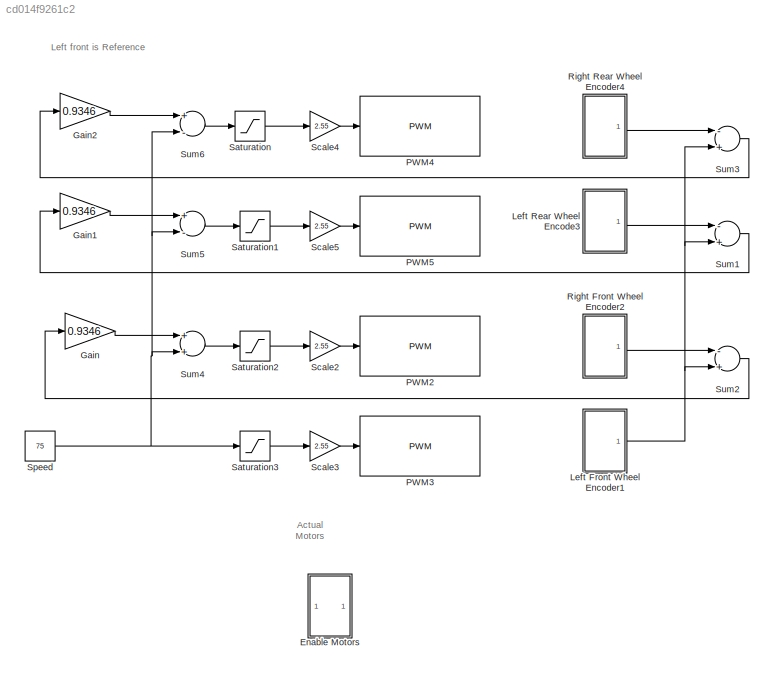
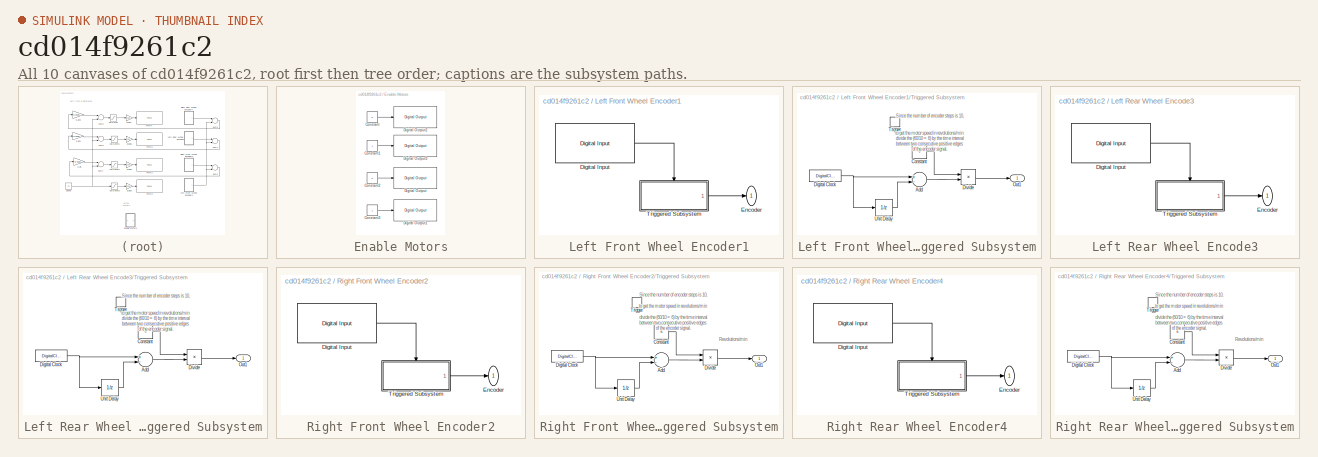
[diagram: thumbnail index - all 10 canvases of the model, root first then tree order]
MODEL slx_cd014f9261c2
KIND model
CONFIG AbsTol = auto
CONFIG EnableMultiTasking = off
CONFIG FixedStep = auto
CONFIG MaxStep = auto
CONFIG MinStep = auto
CONFIG RelTol = 1e-3
CONFIG SampleTimeConstraint = Unconstrained
CONFIG Solver = VariableStepAuto
CONFIG SolverName = VariableStepAuto
CONFIG StartTime = 0.0
CONFIG StopTime = 10.0
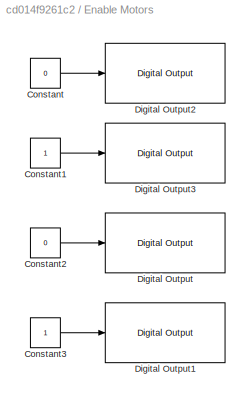
BLOCK [SubSystem] Enable Motors
  Ports = []
  RequestExecContextInheritance = off
  Variant = off
BLOCK [Constant] Enable Motors/Constant
  OutDataTypeStr = boolean
  Value = 0
BLOCK [Constant] Enable Motors/Constant1
  OutDataTypeStr = boolean
BLOCK [Constant] Enable Motors/Constant2
  OutDataTypeStr = boolean
  Value = 0
BLOCK [Constant] Enable Motors/Constant3
  OutDataTypeStr = boolean
BLOCK [Reference] Enable Motors/Digital Output  REF=arduinolib/Digital Output
  Ports = [1]
  SourceBlock = arduinolib/Digital Output
  SourceProductBaseCode = ARDUINO
  SourceProductName = Simulink Support Package for Arduino Hardware
  SourceType = Arduino Digital Output
BLOCK [Reference] Enable Motors/Digital Output1  REF=arduinolib/Digital Output
  Ports = [1]
  SourceBlock = arduinolib/Digital Output
  SourceProductBaseCode = ARDUINO
  SourceProductName = Simulink Support Package for Arduino Hardware
  SourceType = Arduino Digital Output
BLOCK [Reference] Enable Motors/Digital Output2  REF=arduinolib/Digital Output
  Ports = [1]
  SourceBlock = arduinolib/Digital Output
  SourceProductBaseCode = ARDUINO
  SourceProductName = Simulink Support Package for Arduino Hardware
  SourceType = Arduino Digital Output
BLOCK [Reference] Enable Motors/Digital Output3  REF=arduinolib/Digital Output
  Ports = [1]
  SourceBlock = arduinolib/Digital Output
  SourceProductBaseCode = ARDUINO
  SourceProductName = Simulink Support Package for Arduino Hardware
  SourceType = Arduino Digital Output
BLOCK [Gain] Gain
  Gain = 0.9346
  OutDataTypeStr = Inherit: Inherit via internal rule
  ParamDataTypeStr = single
  SaturateOnIntegerOverflow = off
BLOCK [Gain] Gain1
  Gain = 0.9346
  OutDataTypeStr = Inherit: Inherit via internal rule
  ParamDataTypeStr = single
  SaturateOnIntegerOverflow = off
BLOCK [Gain] Gain2
  Gain = 0.9346
  OutDataTypeStr = Inherit: Inherit via internal rule
  ParamDataTypeStr = single
  SaturateOnIntegerOverflow = off
BLOCK [SubSystem] Left Front Wheel Encoder1
  Ports = [0, 1]
  RequestExecContextInheritance = off
  Variant = off
BLOCK [Reference] Left Front Wheel Encoder1/Digital Input  REF=arduinolib/Digital Input
  Ports = [0, 1]
  SourceBlock = arduinolib/Digital Input
  SourceProductBaseCode = ARDUINO
  SourceProductName = Simulink Support Package for Arduino Hardware
  SourceType = Arduino Digital Input
BLOCK [Outport] Left Front Wheel Encoder1/Encoder
  IconDisplay = Port number
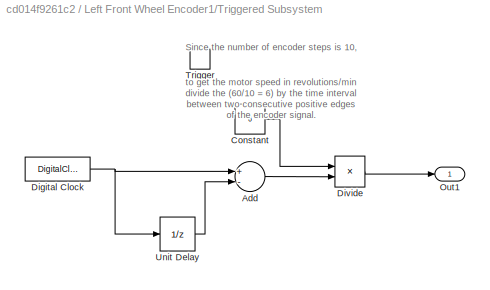
BLOCK [SubSystem] Left Front Wheel Encoder1/Triggered Subsystem
  Ports = [0, 1, 0, 1]
  RequestExecContextInheritance = off
  TreatAsAtomicUnit = on
  Variant = off
BLOCK [Sum] Left Front Wheel Encoder1/Triggered Subsystem/Add
  InputSameDT = off
  Inputs = +-
  OutDataTypeStr = Inherit: Inherit via internal rule
  Ports = [2, 1]
  SaturateOnIntegerOverflow = off
BLOCK [Constant] Left Front Wheel Encoder1/Triggered Subsystem/Constant
  Value = 6
BLOCK [DigitalClock] Left Front Wheel Encoder1/Triggered Subsystem/Digital Clock
  SampleTime = -1
BLOCK [Product] Left Front Wheel Encoder1/Triggered Subsystem/Divide
  InputSameDT = off
  Inputs = */
  OutDataTypeStr = int32
  Ports = [2, 1]
  RndMeth = Floor
  SaturateOnIntegerOverflow = off
BLOCK [Outport] Left Front Wheel Encoder1/Triggered Subsystem/Out1
  IconDisplay = Port number
BLOCK [TriggerPort] Left Front Wheel Encoder1/Triggered Subsystem/Trigger
  Ports = []
  StatesWhenEnabling = held
  VariantControl = Variant
BLOCK [UnitDelay] Left Front Wheel Encoder1/Triggered Subsystem/Unit Delay
  InputProcessing = Elements as channels (sample based)
  SampleTime = -1
BLOCK [SubSystem] Left Rear Wheel Encode3
  Ports = [0, 1]
  RequestExecContextInheritance = off
  Variant = off
BLOCK [Reference] Left Rear Wheel Encode3/Digital Input  REF=arduinolib/Digital Input
  Ports = [0, 1]
  SourceBlock = arduinolib/Digital Input
  SourceProductBaseCode = ARDUINO
  SourceProductName = Simulink Support Package for Arduino Hardware
  SourceType = Arduino Digital Input
BLOCK [Outport] Left Rear Wheel Encode3/Encoder
  IconDisplay = Port number
BLOCK [SubSystem] Left Rear Wheel Encode3/Triggered Subsystem
  Ports = [0, 1, 0, 1]
  RequestExecContextInheritance = off
  TreatAsAtomicUnit = on
  Variant = off
BLOCK [Sum] Left Rear Wheel Encode3/Triggered Subsystem/Add
  InputSameDT = off
  Inputs = +-
  OutDataTypeStr = Inherit: Inherit via internal rule
  Ports = [2, 1]
  SaturateOnIntegerOverflow = off
BLOCK [Constant] Left Rear Wheel Encode3/Triggered Subsystem/Constant
  Value = 6
BLOCK [DigitalClock] Left Rear Wheel Encode3/Triggered Subsystem/Digital Clock
  SampleTime = -1
BLOCK [Product] Left Rear Wheel Encode3/Triggered Subsystem/Divide
  InputSameDT = off
  Inputs = */
  OutDataTypeStr = int32
  Ports = [2, 1]
  RndMeth = Floor
  SaturateOnIntegerOverflow = off
BLOCK [Outport] Left Rear Wheel Encode3/Triggered Subsystem/Out1
  IconDisplay = Port number
BLOCK [TriggerPort] Left Rear Wheel Encode3/Triggered Subsystem/Trigger
  Ports = []
  StatesWhenEnabling = held
  VariantControl = Variant
BLOCK [UnitDelay] Left Rear Wheel Encode3/Triggered Subsystem/Unit Delay
  InputProcessing = Elements as channels (sample based)
  SampleTime = -1
BLOCK [Reference] PWM2  REF=arduinolib/PWM
  Ports = [1]
  SourceBlock = arduinolib/PWM
  SourceProductBaseCode = ARDUINO
  SourceProductName = Simulink Support Package for Arduino Hardware
  SourceType = Arduino PWM
BLOCK [Reference] PWM3  REF=arduinolib/PWM
  Ports = [1]
  SourceBlock = arduinolib/PWM
  SourceProductBaseCode = ARDUINO
  SourceProductName = Simulink Support Package for Arduino Hardware
  SourceType = Arduino PWM
BLOCK [Reference] PWM4  REF=arduinolib/PWM
  Ports = [1]
  SourceBlock = arduinolib/PWM
  SourceProductBaseCode = ARDUINO
  SourceProductName = Simulink Support Package for Arduino Hardware
  SourceType = Arduino PWM
BLOCK [Reference] PWM5  REF=arduinolib/PWM
  Ports = [1]
  SourceBlock = arduinolib/PWM
  SourceProductBaseCode = ARDUINO
  SourceProductName = Simulink Support Package for Arduino Hardware
  SourceType = Arduino PWM
BLOCK [SubSystem] Right Front Wheel Encoder2
  Ports = [0, 1]
  RequestExecContextInheritance = off
  Variant = off
BLOCK [Reference] Right Front Wheel Encoder2/Digital Input  REF=arduinolib/Digital Input
  Ports = [0, 1]
  SourceBlock = arduinolib/Digital Input
  SourceProductBaseCode = ARDUINO
  SourceProductName = Simulink Support Package for Arduino Hardware
  SourceType = Arduino Digital Input
BLOCK [Outport] Right Front Wheel Encoder2/Encoder
  IconDisplay = Port number
BLOCK [SubSystem] Right Front Wheel Encoder2/Triggered Subsystem
  Ports = [0, 1, 0, 1]
  RequestExecContextInheritance = off
  TreatAsAtomicUnit = on
  Variant = off
BLOCK [Sum] Right Front Wheel Encoder2/Triggered Subsystem/Add
  InputSameDT = off
  Inputs = +-
  OutDataTypeStr = Inherit: Inherit via internal rule
  Ports = [2, 1]
  SaturateOnIntegerOverflow = off
BLOCK [Constant] Right Front Wheel Encoder2/Triggered Subsystem/Constant
  Value = 6
BLOCK [DigitalClock] Right Front Wheel Encoder2/Triggered Subsystem/Digital Clock
  SampleTime = -1
BLOCK [Product] Right Front Wheel Encoder2/Triggered Subsystem/Divide
  InputSameDT = off
  Inputs = */
  OutDataTypeStr = int32
  Ports = [2, 1]
  RndMeth = Floor
  SaturateOnIntegerOverflow = off
BLOCK [Outport] Right Front Wheel Encoder2/Triggered Subsystem/Out1
  IconDisplay = Port number
BLOCK [TriggerPort] Right Front Wheel Encoder2/Triggered Subsystem/Trigger
  Ports = []
  StatesWhenEnabling = held
  VariantControl = Variant
BLOCK [UnitDelay] Right Front Wheel Encoder2/Triggered Subsystem/Unit Delay
  InputProcessing = Elements as channels (sample based)
  SampleTime = -1
BLOCK [SubSystem] Right Rear Wheel Encoder4
  Ports = [0, 1]
  RequestExecContextInheritance = off
  Variant = off
BLOCK [Reference] Right Rear Wheel Encoder4/Digital Input  REF=arduinolib/Digital Input
  Ports = [0, 1]
  SourceBlock = arduinolib/Digital Input
  SourceProductBaseCode = ARDUINO
  SourceProductName = Simulink Support Package for Arduino Hardware
  SourceType = Arduino Digital Input
BLOCK [Outport] Right Rear Wheel Encoder4/Encoder
  IconDisplay = Port number
BLOCK [SubSystem] Right Rear Wheel Encoder4/Triggered Subsystem
  Ports = [0, 1, 0, 1]
  RequestExecContextInheritance = off
  TreatAsAtomicUnit = on
  Variant = off
BLOCK [Sum] Right Rear Wheel Encoder4/Triggered Subsystem/Add
  InputSameDT = off
  Inputs = +-
  OutDataTypeStr = Inherit: Inherit via internal rule
  Ports = [2, 1]
  SaturateOnIntegerOverflow = off
BLOCK [Constant] Right Rear Wheel Encoder4/Triggered Subsystem/Constant
  Value = 6
BLOCK [DigitalClock] Right Rear Wheel Encoder4/Triggered Subsystem/Digital Clock
  SampleTime = -1
BLOCK [Product] Right Rear Wheel Encoder4/Triggered Subsystem/Divide
  InputSameDT = off
  Inputs = */
  OutDataTypeStr = int32
  Ports = [2, 1]
  RndMeth = Floor
  SaturateOnIntegerOverflow = off
BLOCK [Outport] Right Rear Wheel Encoder4/Triggered Subsystem/Out1
  IconDisplay = Port number
BLOCK [TriggerPort] Right Rear Wheel Encoder4/Triggered Subsystem/Trigger
  Ports = []
  StatesWhenEnabling = held
  VariantControl = Variant
BLOCK [UnitDelay] Right Rear Wheel Encoder4/Triggered Subsystem/Unit Delay
  InputProcessing = Elements as channels (sample based)
  SampleTime = -1
BLOCK [Saturate] Saturation
  AttributesFormatString = max = %<UpperLimit>\nmin = %<LowerLimit>
  InputPortMap = u0
  LowerLimit = 0
  Ports = [1, 1]
  UpperLimit = 100
BLOCK [Saturate] Saturation1
  AttributesFormatString = max = %<UpperLimit>\nmin = %<LowerLimit>
  InputPortMap = u0
  LowerLimit = 0
  Ports = [1, 1]
  UpperLimit = 100
BLOCK [Saturate] Saturation2
  AttributesFormatString = max = %<UpperLimit>\nmin = %<LowerLimit>
  InputPortMap = u0
  LowerLimit = 0
  Ports = [1, 1]
  UpperLimit = 100
BLOCK [Saturate] Saturation3
  AttributesFormatString = max = %<UpperLimit>\nmin = %<LowerLimit>
  InputPortMap = u0
  LowerLimit = 0
  Ports = [1, 1]
  UpperLimit = 100
BLOCK [Gain] Scale2
  Gain = 2.55
  OutDataTypeStr = Inherit: Inherit via internal rule
  ParamDataTypeStr = Inherit: Inherit via internal rule
  SaturateOnIntegerOverflow = off
BLOCK [Gain] Scale3
  Gain = 2.55
  OutDataTypeStr = Inherit: Inherit via internal rule
  ParamDataTypeStr = Inherit: Inherit via internal rule
  SaturateOnIntegerOverflow = off
BLOCK [Gain] Scale4
  Gain = 2.55
  OutDataTypeStr = Inherit: Inherit via internal rule
  ParamDataTypeStr = Inherit: Inherit via internal rule
  SaturateOnIntegerOverflow = off
BLOCK [Gain] Scale5
  Gain = 2.55
  OutDataTypeStr = Inherit: Inherit via internal rule
  ParamDataTypeStr = Inherit: Inherit via internal rule
  SaturateOnIntegerOverflow = off
BLOCK [Constant] Speed
  OutDataTypeStr = single
  OutMax = 100
  OutMin = 0
  SampleTime = 0.001
  Value = 75
BLOCK [Sum] Sum1
  InputSameDT = off
  Inputs = -+
  Ports = [2, 1]
  SaturateOnIntegerOverflow = off
BLOCK [Sum] Sum2
  InputSameDT = off
  Inputs = -+
  Ports = [2, 1]
  SaturateOnIntegerOverflow = off
BLOCK [Sum] Sum3
  InputSameDT = off
  Inputs = -+
  Ports = [2, 1]
  SaturateOnIntegerOverflow = off
BLOCK [Sum] Sum4
  InputSameDT = off
  Ports = [2, 1]
  SaturateOnIntegerOverflow = off
BLOCK [Sum] Sum5
  InputSameDT = off
  Inputs = +-
  Ports = [2, 1]
  SaturateOnIntegerOverflow = off
BLOCK [Sum] Sum6
  InputSameDT = off
  Inputs = +-
  Ports = [2, 1]
  SaturateOnIntegerOverflow = off
ANNOTATION (root): Left front is Reference
ANNOTATION (root): Actual Motors
ANNOTATION Left Front Wheel Encoder1/Triggered Subsystem: Since the number of encoder steps is 10, to get the motor speed in revolutions/min divide the (60/10 = 6) by the time interval between two consecutive positive edges of the encoder signal.
ANNOTATION Left Rear Wheel Encode3/Triggered Subsystem: Since the number of encoder steps is 10, to get the motor speed in revolutions/min divide the (60/10 = 6) by the time interval between two consecutive positive edges of the encoder signal.
ANNOTATION Right Front Wheel Encoder2/Triggered Subsystem: Revolutions/min
ANNOTATION Right Front Wheel Encoder2/Triggered Subsystem: Since the number of encoder steps is 10, to get the motor speed in revolutions/min divide the (60/10 = 6) by the time interval between two consecutive positive edges of the encoder signal.
ANNOTATION Right Rear Wheel Encoder4/Triggered Subsystem: Revolutions/min
ANNOTATION Right Rear Wheel Encoder4/Triggered Subsystem: Since the number of encoder steps is 10, to get the motor speed in revolutions/min divide the (60/10 = 6) by the time interval between two consecutive positive edges of the encoder signal.
LINE Enable Motors/Constant1:1 -> Enable Motors/Digital Output3:1
LINE Enable Motors/Constant2:1 -> Enable Motors/Digital Output:1
LINE Enable Motors/Constant3:1 -> Enable Motors/Digital Output1:1
LINE Enable Motors/Constant:1 -> Enable Motors/Digital Output2:1
LINE Gain1:1 -> Sum5:1
LINE Gain2:1 -> Sum6:1
LINE Gain:1 -> Sum4:1
LINE Left Front Wheel Encoder1/Digital Input:1 -> Left Front Wheel Encoder1/Triggered Subsystem:trigger
LINE Left Front Wheel Encoder1/Triggered Subsystem/Add:1 -> Left Front Wheel Encoder1/Triggered Subsystem/Divide:2
LINE Left Front Wheel Encoder1/Triggered Subsystem/Constant:1 -> Left Front Wheel Encoder1/Triggered Subsystem/Divide:1
NET Left Front Wheel Encoder1/Triggered Subsystem/Digital Clock:1 -> Left Front Wheel Encoder1/Triggered Subsystem/Add:1, Left Front Wheel Encoder1/Triggered Subsystem/Unit Delay:1
LINE Left Front Wheel Encoder1/Triggered Subsystem/Divide:1 -> Left Front Wheel Encoder1/Triggered Subsystem/Out1:1
LINE Left Front Wheel Encoder1/Triggered Subsystem/Unit Delay:1 -> Left Front Wheel Encoder1/Triggered Subsystem/Add:2
LINE Left Front Wheel Encoder1/Triggered Subsystem:1 -> Left Front Wheel Encoder1/Encoder:1
NET Left Front Wheel Encoder1:1 -> Sum1:2, Sum2:2, Sum3:2
LINE Left Rear Wheel Encode3/Digital Input:1 -> Left Rear Wheel Encode3/Triggered Subsystem:trigger
LINE Left Rear Wheel Encode3/Triggered Subsystem/Add:1 -> Left Rear Wheel Encode3/Triggered Subsystem/Divide:2
LINE Left Rear Wheel Encode3/Triggered Subsystem/Constant:1 -> Left Rear Wheel Encode3/Triggered Subsystem/Divide:1
NET Left Rear Wheel Encode3/Triggered Subsystem/Digital Clock:1 -> Left Rear Wheel Encode3/Triggered Subsystem/Add:1, Left Rear Wheel Encode3/Triggered Subsystem/Unit Delay:1
LINE Left Rear Wheel Encode3/Triggered Subsystem/Divide:1 -> Left Rear Wheel Encode3/Triggered Subsystem/Out1:1
LINE Left Rear Wheel Encode3/Triggered Subsystem/Unit Delay:1 -> Left Rear Wheel Encode3/Triggered Subsystem/Add:2
LINE Left Rear Wheel Encode3/Triggered Subsystem:1 -> Left Rear Wheel Encode3/Encoder:1
LINE Left Rear Wheel Encode3:1 -> Sum1:1
LINE Right Front Wheel Encoder2/Digital Input:1 -> Right Front Wheel Encoder2/Triggered Subsystem:trigger
LINE Right Front Wheel Encoder2/Triggered Subsystem/Add:1 -> Right Front Wheel Encoder2/Triggered Subsystem/Divide:2
LINE Right Front Wheel Encoder2/Triggered Subsystem/Constant:1 -> Right Front Wheel Encoder2/Triggered Subsystem/Divide:1
NET Right Front Wheel Encoder2/Triggered Subsystem/Digital Clock:1 -> Right Front Wheel Encoder2/Triggered Subsystem/Add:1, Right Front Wheel Encoder2/Triggered Subsystem/Unit Delay:1
LINE Right Front Wheel Encoder2/Triggered Subsystem/Divide:1 -> Right Front Wheel Encoder2/Triggered Subsystem/Out1:1
LINE Right Front Wheel Encoder2/Triggered Subsystem/Unit Delay:1 -> Right Front Wheel Encoder2/Triggered Subsystem/Add:2
LINE Right Front Wheel Encoder2/Triggered Subsystem:1 -> Right Front Wheel Encoder2/Encoder:1
LINE Right Front Wheel Encoder2:1 -> Sum2:1
LINE Right Rear Wheel Encoder4/Digital Input:1 -> Right Rear Wheel Encoder4/Triggered Subsystem:trigger
LINE Right Rear Wheel Encoder4/Triggered Subsystem/Add:1 -> Right Rear Wheel Encoder4/Triggered Subsystem/Divide:2
LINE Right Rear Wheel Encoder4/Triggered Subsystem/Constant:1 -> Right Rear Wheel Encoder4/Triggered Subsystem/Divide:1
NET Right Rear Wheel Encoder4/Triggered Subsystem/Digital Clock:1 -> Right Rear Wheel Encoder4/Triggered Subsystem/Add:1, Right Rear Wheel Encoder4/Triggered Subsystem/Unit Delay:1
LINE Right Rear Wheel Encoder4/Triggered Subsystem/Divide:1 -> Right Rear Wheel Encoder4/Triggered Subsystem/Out1:1
LINE Right Rear Wheel Encoder4/Triggered Subsystem/Unit Delay:1 -> Right Rear Wheel Encoder4/Triggered Subsystem/Add:2
LINE Right Rear Wheel Encoder4/Triggered Subsystem:1 -> Right Rear Wheel Encoder4/Encoder:1
LINE Right Rear Wheel Encoder4:1 -> Sum3:1
LINE Saturation1:1 -> Scale5:1
LINE Saturation2:1 -> Scale2:1
LINE Saturation3:1 -> Scale3:1
LINE Saturation:1 -> Scale4:1
LINE Scale2:1 -> PWM2:1
LINE Scale3:1 -> PWM3:1
LINE Scale4:1 -> PWM4:1
LINE Scale5:1 -> PWM5:1
NET Speed:1 -> Saturation3:1, Sum4:2, Sum5:2, Sum6:2
LINE Sum1:1 -> Gain1:1
LINE Sum2:1 -> Gain:1
LINE Sum3:1 -> Gain2:1
LINE Sum4:1 -> Saturation2:1
LINE Sum5:1 -> Saturation1:1
LINE Sum6:1 -> Saturation:1
note: NET lines group one-source signal fan-out (src -> all destinations, sorted); 1:1 wires keep LINE
